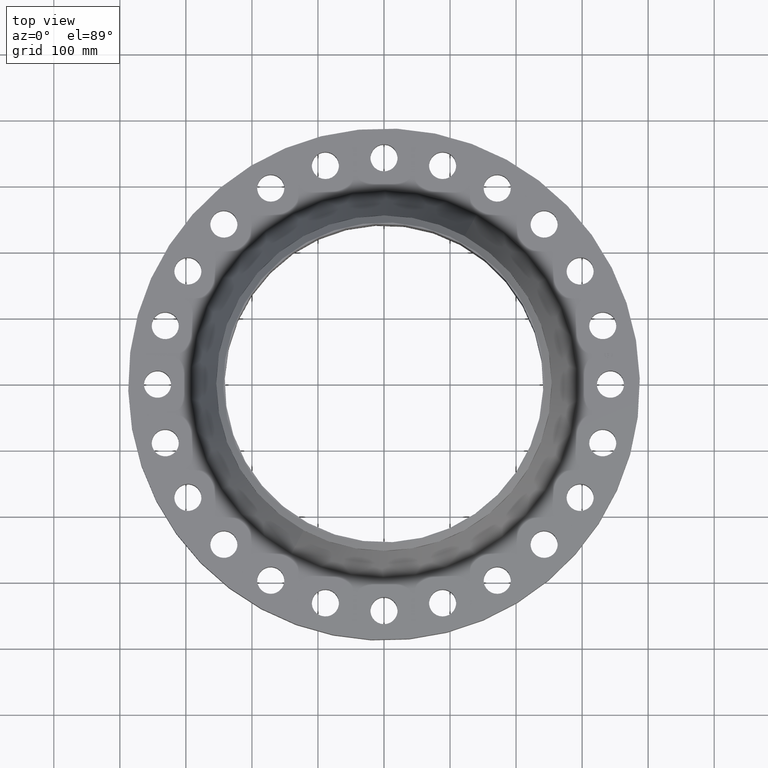
[diagram: clean part render]
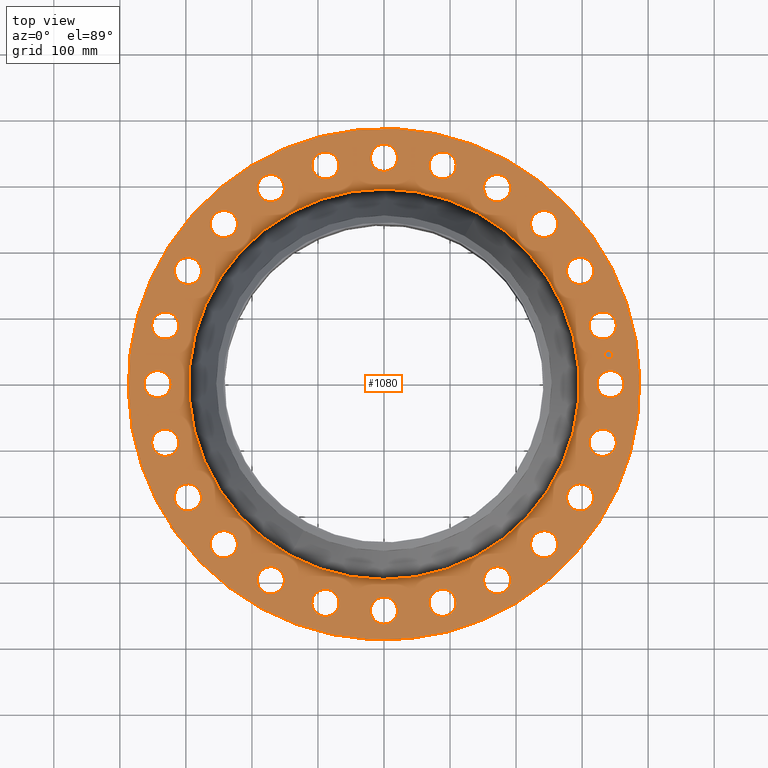
[diagram: same view with one face highlighted and labeled with its STEP entity id]
A machine part, top view. The second image highlights one B-rep face of the part: STEP entity #1080.
In plain terms, the highlighted planar face has unit normal (0, 0, -1).
Its self-contained STEP definition (entity closure, byte-faithful):
#119=AXIS2_PLACEMENT_3D('Circle Axis2P3D',#117,#118,$) ;
#606=AXIS2_PLACEMENT_3D('Plane Axis2P3D',#603,#604,#605) ;
#610=AXIS2_PLACEMENT_3D('Circle Axis2P3D',#608,#609,$) ;
#619=AXIS2_PLACEMENT_3D('Circle Axis2P3D',#617,#618,$) ;
#632=AXIS2_PLACEMENT_3D('Circle Axis2P3D',#630,#631,$) ;
#641=AXIS2_PLACEMENT_3D('Circle Axis2P3D',#639,#640,$) ;
#650=AXIS2_PLACEMENT_3D('Circle Axis2P3D',#648,#649,$) ;
#659=AXIS2_PLACEMENT_3D('Circle Axis2P3D',#657,#658,$) ;
#668=AXIS2_PLACEMENT_3D('Circle Axis2P3D',#666,#667,$) ;
#677=AXIS2_PLACEMENT_3D('Circle Axis2P3D',#675,#676,$) ;
#686=AXIS2_PLACEMENT_3D('Circle Axis2P3D',#684,#685,$) ;
#695=AXIS2_PLACEMENT_3D('Circle Axis2P3D',#693,#694,$) ;
#704=AXIS2_PLACEMENT_3D('Circle Axis2P3D',#702,#703,$) ;
#713=AXIS2_PLACEMENT_3D('Circle Axis2P3D',#711,#712,$) ;
#722=AXIS2_PLACEMENT_3D('Circle Axis2P3D',#720,#721,$) ;
#731=AXIS2_PLACEMENT_3D('Circle Axis2P3D',#729,#730,$) ;
#740=AXIS2_PLACEMENT_3D('Circle Axis2P3D',#738,#739,$) ;
#749=AXIS2_PLACEMENT_3D('Circle Axis2P3D',#747,#748,$) ;
#758=AXIS2_PLACEMENT_3D('Circle Axis2P3D',#756,#757,$) ;
#767=AXIS2_PLACEMENT_3D('Circle Axis2P3D',#765,#766,$) ;
#776=AXIS2_PLACEMENT_3D('Circle Axis2P3D',#774,#775,$) ;
#785=AXIS2_PLACEMENT_3D('Circle Axis2P3D',#783,#784,$) ;
#794=AXIS2_PLACEMENT_3D('Circle Axis2P3D',#792,#793,$) ;
#803=AXIS2_PLACEMENT_3D('Circle Axis2P3D',#801,#802,$) ;
#812=AXIS2_PLACEMENT_3D('Circle Axis2P3D',#810,#811,$) ;
#821=AXIS2_PLACEMENT_3D('Circle Axis2P3D',#819,#820,$) ;
#830=AXIS2_PLACEMENT_3D('Circle Axis2P3D',#828,#829,$) ;
#839=AXIS2_PLACEMENT_3D('Circle Axis2P3D',#837,#838,$) ;
#848=AXIS2_PLACEMENT_3D('Circle Axis2P3D',#846,#847,$) ;
#857=AXIS2_PLACEMENT_3D('Circle Axis2P3D',#855,#856,$) ;
#866=AXIS2_PLACEMENT_3D('Circle Axis2P3D',#864,#865,$) ;
#875=AXIS2_PLACEMENT_3D('Circle Axis2P3D',#873,#874,$) ;
#884=AXIS2_PLACEMENT_3D('Circle Axis2P3D',#882,#883,$) ;
#893=AXIS2_PLACEMENT_3D('Circle Axis2P3D',#891,#892,$) ;
#902=AXIS2_PLACEMENT_3D('Circle Axis2P3D',#900,#901,$) ;
#911=AXIS2_PLACEMENT_3D('Circle Axis2P3D',#909,#910,$) ;
#920=AXIS2_PLACEMENT_3D('Circle Axis2P3D',#918,#919,$) ;
#929=AXIS2_PLACEMENT_3D('Circle Axis2P3D',#927,#928,$) ;
#938=AXIS2_PLACEMENT_3D('Circle Axis2P3D',#936,#937,$) ;
#947=AXIS2_PLACEMENT_3D('Circle Axis2P3D',#945,#946,$) ;
#956=AXIS2_PLACEMENT_3D('Circle Axis2P3D',#954,#955,$) ;
#965=AXIS2_PLACEMENT_3D('Circle Axis2P3D',#963,#964,$) ;
#974=AXIS2_PLACEMENT_3D('Circle Axis2P3D',#972,#973,$) ;
#983=AXIS2_PLACEMENT_3D('Circle Axis2P3D',#981,#982,$) ;
#992=AXIS2_PLACEMENT_3D('Circle Axis2P3D',#990,#991,$) ;
#1001=AXIS2_PLACEMENT_3D('Circle Axis2P3D',#999,#1000,$) ;
#1010=AXIS2_PLACEMENT_3D('Circle Axis2P3D',#1008,#1009,$) ;
#1019=AXIS2_PLACEMENT_3D('Circle Axis2P3D',#1017,#1018,$) ;
#1028=AXIS2_PLACEMENT_3D('Circle Axis2P3D',#1026,#1027,$) ;
#1037=AXIS2_PLACEMENT_3D('Circle Axis2P3D',#1035,#1036,$) ;
#1046=AXIS2_PLACEMENT_3D('Circle Axis2P3D',#1044,#1045,$) ;
#1055=AXIS2_PLACEMENT_3D('Circle Axis2P3D',#1053,#1054,$) ;
#1064=AXIS2_PLACEMENT_3D('Circle Axis2P3D',#1062,#1063,$) ;
#1073=AXIS2_PLACEMENT_3D('Circle Axis2P3D',#1071,#1072,$) ;
#46=CARTESIAN_POINT('Vertex',(12.789158125,0.388334686271,2.75)) ;
#72=CARTESIAN_POINT('Vertex',(14.2108418752,-0.388334686277,2.75000000001)) ;
#76=CARTESIAN_POINT('Control Point',(12.789158125,0.388334686271,2.75000000001)) ;
#77=CARTESIAN_POINT('Control Point',(12.8501575948,0.49999346691,2.75000000001)) ;
#78=CARTESIAN_POINT('Control Point',(12.933081215,0.599675029647,2.75000000001)) ;
#79=CARTESIAN_POINT('Control Point',(13.0348108837,0.681620228595,2.75000000001)) ;
#80=CARTESIAN_POINT('Control Point',(13.2649194365,0.801207087645,2.75000000001)) ;
#81=CARTESIAN_POINT('Control Point',(13.5231621628,0.824906397278,2.75000000001)) ;
#82=CARTESIAN_POINT('Control Point',(13.6530399072,0.810916664576,2.75000000001)) ;
#83=CARTESIAN_POINT('Control Point',(13.9003119043,0.732766025444,2.75)) ;
#84=CARTESIAN_POINT('Control Point',(14.0996750297,0.566918785071,2.75)) ;
#85=CARTESIAN_POINT('Control Point',(14.1816202287,0.465189116403,2.75)) ;
#86=CARTESIAN_POINT('Control Point',(14.3012070877,0.235080563584,2.75)) ;
#87=CARTESIAN_POINT('Control Point',(14.3249063974,-0.0231621626661,2.75)) ;
#88=CARTESIAN_POINT('Control Point',(14.3109166647,-0.15303990709,2.75)) ;
#89=CARTESIAN_POINT('Control Point',(14.2718413451,-0.276675905632,2.75)) ;
#90=CARTESIAN_POINT('Control Point',(14.2108418752,-0.388334686271,2.75)) ;
#117=CARTESIAN_POINT('Axis2P3D Location',(13.5000000001,0.,2.75)) ;
#603=CARTESIAN_POINT('Axis2P3D Location',(0.,15.2500000001,2.75000000001)) ;
#608=CARTESIAN_POINT('Axis2P3D Location',(-1.28099106126E-011,1.16685663756E-011,2.75000000001)) ;
#612=CARTESIAN_POINT('Vertex',(7.31123946375,13.3831340689,2.75000000003)) ;
#614=CARTESIAN_POINT('Vertex',(-7.31123946377,-13.3831340689,2.75000000003)) ;
#617=CARTESIAN_POINT('Axis2P3D Location',(1.28099106126E-011,-2.33192293122E-012,2.75000000001)) ;
#630=CARTESIAN_POINT('Axis2P3D Location',(1.28121485424E-011,-2.32968500134E-012,2.75000000001)) ;
#634=CARTESIAN_POINT('Vertex',(-5.57864780282,-10.2116463068,2.75000000001)) ;
#636=CARTESIAN_POINT('Vertex',(5.57864780282,10.2116463068,2.75000000001)) ;
#639=CARTESIAN_POINT('Axis2P3D Location',(-1.28121485424E-011,1.16663284457E-011,2.75000000001)) ;
#648=CARTESIAN_POINT('Axis2P3D Location',(13.039998655,-3.49405710889,2.75000000001)) ;
#652=CARTESIAN_POINT('Vertex',(13.6261107679,-4.05313902699,2.75000000001)) ;
#654=CARTESIAN_POINT('Vertex',(12.4538865421,-2.93497519085,2.75)) ;
#657=CARTESIAN_POINT('Axis2P3D Location',(13.039998655,-3.49405710893,2.75000000001)) ;
#666=CARTESIAN_POINT('Axis2P3D Location',(11.6913429511,-6.75,2.75000000001)) ;
#670=CARTESIAN_POINT('Vertex',(12.1127827299,-7.44172864108,2.75)) ;
#672=CARTESIAN_POINT('Vertex',(11.2699031723,-6.05827135898,2.75)) ;
#675=CARTESIAN_POINT('Axis2P3D Location',(11.6913429511,-6.75,2.75000000001)) ;
#684=CARTESIAN_POINT('Axis2P3D Location',(9.54594154605,-9.54594154608,2.75000000001)) ;
#688=CARTESIAN_POINT('Vertex',(9.77398856631,-10.3231767463,2.75000000001)) ;
#690=CARTESIAN_POINT('Vertex',(9.31789452583,-8.76870634577,2.75)) ;
#693=CARTESIAN_POINT('Axis2P3D Location',(9.54594154612,-9.54594154606,2.75000000001)) ;
#702=CARTESIAN_POINT('Axis2P3D Location',(6.75000000004,-11.6913429511,2.75000000001)) ;
#706=CARTESIAN_POINT('Vertex',(6.76911323412,-12.5011174162,2.75000000001)) ;
#708=CARTESIAN_POINT('Vertex',(6.73088676594,-10.881568486,2.75)) ;
#711=CARTESIAN_POINT('Axis2P3D Location',(6.75000000004,-11.6913429511,2.75000000001)) ;
#720=CARTESIAN_POINT('Axis2P3D Location',(3.49405710889,-13.039998655,2.75000000001)) ;
#724=CARTESIAN_POINT('Vertex',(3.30293402149,-13.8271275933,2.75000000001)) ;
#726=CARTESIAN_POINT('Vertex',(3.68518019627,-12.2528697167,2.75)) ;
#729=CARTESIAN_POINT('Axis2P3D Location',(3.4940571089,-13.039998655,2.75000000001)) ;
#738=CARTESIAN_POINT('Axis2P3D Location',(1.98107846838E-011,-13.5000000001,2.75000000001)) ;
#742=CARTESIAN_POINT('Vertex',(-0.388334686318,-14.2108418752,2.75000000001)) ;
#744=CARTESIAN_POINT('Vertex',(0.388334686271,-12.789158125,2.75)) ;
#747=CARTESIAN_POINT('Axis2P3D Location',(-3.66662430951E-011,-13.5000000001,2.75000000001)) ;
#756=CARTESIAN_POINT('Axis2P3D Location',(-3.4940571089,-13.039998655,2.75000000001)) ;
#760=CARTESIAN_POINT('Vertex',(-4.05313902696,-13.6261107679,2.75000000001)) ;
#762=CARTESIAN_POINT('Vertex',(-2.93497519085,-12.4538865421,2.75)) ;
#765=CARTESIAN_POINT('Axis2P3D Location',(-3.4940571089,-13.039998655,2.75000000001)) ;
#774=CARTESIAN_POINT('Axis2P3D Location',(-6.75000000004,-11.6913429511,2.75000000001)) ;
#778=CARTESIAN_POINT('Vertex',(-7.44172864108,-12.1127827299,2.75)) ;
#780=CARTESIAN_POINT('Vertex',(-6.05827135898,-11.2699031723,2.75)) ;
#783=CARTESIAN_POINT('Axis2P3D Location',(-6.75000000004,-11.6913429511,2.75000000001)) ;
#792=CARTESIAN_POINT('Axis2P3D Location',(-9.54594154606,-9.5459415461,2.75000000001)) ;
#796=CARTESIAN_POINT('Vertex',(-10.3231767464,-9.77398856627,2.75000000001)) ;
#798=CARTESIAN_POINT('Vertex',(-8.76870634577,-9.31789452583,2.75)) ;
#801=CARTESIAN_POINT('Axis2P3D Location',(-9.54594154608,-9.54594154603,2.75000000001)) ;
#810=CARTESIAN_POINT('Axis2P3D Location',(-11.6913429511,-6.75000000004,2.75000000001)) ;
#814=CARTESIAN_POINT('Vertex',(-12.5011174162,-6.76911323408,2.75000000001)) ;
#816=CARTESIAN_POINT('Vertex',(-10.881568486,-6.73088676594,2.75)) ;
#819=CARTESIAN_POINT('Axis2P3D Location',(-11.6913429511,-6.75000000004,2.75000000001)) ;
#828=CARTESIAN_POINT('Axis2P3D Location',(-13.039998655,-3.49405710889,2.75000000001)) ;
#832=CARTESIAN_POINT('Vertex',(-13.8271275933,-3.30293402152,2.75000000001)) ;
#834=CARTESIAN_POINT('Vertex',(-12.2528697167,-3.68518019627,2.75)) ;
#837=CARTESIAN_POINT('Axis2P3D Location',(-13.039998655,-3.49405710889,2.75000000001)) ;
#846=CARTESIAN_POINT('Axis2P3D Location',(-13.5000000001,1.74804702646E-011,2.75000000001)) ;
#850=CARTESIAN_POINT('Vertex',(-14.2108418752,0.388334686286,2.75000000001)) ;
#852=CARTESIAN_POINT('Vertex',(-12.789158125,-0.388334686271,2.75)) ;
#855=CARTESIAN_POINT('Axis2P3D Location',(-13.5000000001,-8.14382682026E-012,2.75000000001)) ;
#864=CARTESIAN_POINT('Axis2P3D Location',(-13.039998655,3.4940571089,2.75000000001)) ;
#868=CARTESIAN_POINT('Vertex',(-13.6261107679,4.05313902693,2.75000000001)) ;
#870=CARTESIAN_POINT('Vertex',(-12.4538865421,2.93497519085,2.75)) ;
#873=CARTESIAN_POINT('Axis2P3D Location',(-13.039998655,3.4940571089,2.75000000001)) ;
#882=CARTESIAN_POINT('Axis2P3D Location',(-11.6913429511,6.75000000001,2.75000000001)) ;
#886=CARTESIAN_POINT('Vertex',(-12.1127827299,7.44172864108,2.75)) ;
#888=CARTESIAN_POINT('Vertex',(-11.2699031723,6.05827135898,2.75)) ;
#891=CARTESIAN_POINT('Axis2P3D Location',(-11.6913429511,6.75000000001,2.75000000001)) ;
#900=CARTESIAN_POINT('Axis2P3D Location',(-9.54594154608,9.54594154604,2.75000000001)) ;
#904=CARTESIAN_POINT('Vertex',(-9.77398856631,10.3231767463,2.75000000001)) ;
#906=CARTESIAN_POINT('Vertex',(-9.31789452583,8.76870634577,2.75)) ;
#909=CARTESIAN_POINT('Axis2P3D Location',(-9.54594154608,9.54594154604,2.75000000001)) ;
#918=CARTESIAN_POINT('Axis2P3D Location',(-6.75000000004,11.6913429511,2.75000000001)) ;
#922=CARTESIAN_POINT('Vertex',(-6.76911323412,12.5011174162,2.75000000001)) ;
#924=CARTESIAN_POINT('Vertex',(-6.73088676594,10.881568486,2.75)) ;
#927=CARTESIAN_POINT('Axis2P3D Location',(-6.75000000004,11.6913429511,2.75000000001)) ;
#936=CARTESIAN_POINT('Axis2P3D Location',(-3.49405710889,13.039998655,2.75000000001)) ;
#940=CARTESIAN_POINT('Vertex',(-3.30293402149,13.8271275933,2.75000000001)) ;
#942=CARTESIAN_POINT('Vertex',(-3.68518019627,12.2528697167,2.75)) ;
#945=CARTESIAN_POINT('Axis2P3D Location',(-3.49405710889,13.039998655,2.75000000001)) ;
#954=CARTESIAN_POINT('Axis2P3D Location',(-1.98107846838E-011,13.5000000001,2.75000000001)) ;
#958=CARTESIAN_POINT('Vertex',(0.388334686318,14.2108418753,2.75000000001)) ;
#960=CARTESIAN_POINT('Vertex',(-0.388334686271,12.789158125,2.75)) ;
#963=CARTESIAN_POINT('Axis2P3D Location',(3.66662430951E-011,13.5000000001,2.75000000001)) ;
#972=CARTESIAN_POINT('Axis2P3D Location',(3.4940571089,13.039998655,2.75000000001)) ;
#976=CARTESIAN_POINT('Vertex',(4.05313902696,13.6261107679,2.75000000001)) ;
#978=CARTESIAN_POINT('Vertex',(2.93497519085,12.4538865421,2.75)) ;
#981=CARTESIAN_POINT('Axis2P3D Location',(3.4940571089,13.039998655,2.75000000001)) ;
#990=CARTESIAN_POINT('Axis2P3D Location',(6.75000000004,11.6913429511,2.75000000001)) ;
#994=CARTESIAN_POINT('Vertex',(7.44172864108,12.1127827299,2.75)) ;
#996=CARTESIAN_POINT('Vertex',(6.05827135898,11.2699031723,2.75)) ;
#999=CARTESIAN_POINT('Axis2P3D Location',(6.75000000004,11.6913429511,2.75000000001)) ;
#1008=CARTESIAN_POINT('Axis2P3D Location',(9.54594154608,9.54594154604,2.75000000001)) ;
#1012=CARTESIAN_POINT('Vertex',(10.3231767464,9.77398856628,2.75000000001)) ;
#1014=CARTESIAN_POINT('Vertex',(8.76870634577,9.31789452583,2.75)) ;
#1017=CARTESIAN_POINT('Axis2P3D Location',(9.54594154608,9.54594154604,2.75000000001)) ;
#1026=CARTESIAN_POINT('Axis2P3D Location',(11.6913429511,6.75000000005,2.75000000001)) ;
#1030=CARTESIAN_POINT('Vertex',(12.5011174162,6.76911323409,2.75000000001)) ;
#1032=CARTESIAN_POINT('Vertex',(10.881568486,6.73088676594,2.75)) ;
#1035=CARTESIAN_POINT('Axis2P3D Location',(11.6913429511,6.75000000005,2.75000000001)) ;
#1044=CARTESIAN_POINT('Axis2P3D Location',(13.039998655,3.4940571089,2.75000000001)) ;
#1048=CARTESIAN_POINT('Vertex',(13.8271275933,3.30293402153,2.75000000001)) ;
#1050=CARTESIAN_POINT('Vertex',(12.2528697167,3.68518019627,2.75)) ;
#1053=CARTESIAN_POINT('Axis2P3D Location',(13.039998655,3.4940571089,2.75000000001)) ;
#1062=CARTESIAN_POINT('Axis2P3D Location',(13.3845056286,1.76210359498,2.75000000001)) ;
#1066=CARTESIAN_POINT('Vertex',(13.352200396,2.00748619818,2.75000000001)) ;
#1068=CARTESIAN_POINT('Vertex',(13.4168108612,1.51672099178,2.75000000001)) ;
#1071=CARTESIAN_POINT('Axis2P3D Location',(13.3845056286,1.76210359498,2.75000000001)) ;
#118=DIRECTION('Axis2P3D Direction',(0.,-0.,-0.0393700787402)) ;
#604=DIRECTION('Axis2P3D Direction',(0.,0.,-0.0393700787402)) ;
#605=DIRECTION('Axis2P3D XDirection',(0.0393700787402,0.,0.)) ;
#609=DIRECTION('Axis2P3D Direction',(0.,0.,-0.0393700787402)) ;
#618=DIRECTION('Axis2P3D Direction',(0.,0.,-0.0393700787402)) ;
#631=DIRECTION('Axis2P3D Direction',(0.,0.,-0.0393700787402)) ;
#640=DIRECTION('Axis2P3D Direction',(0.,0.,-0.0393700787402)) ;
#649=DIRECTION('Axis2P3D Direction',(0.,0.,-0.0393700787402)) ;
#658=DIRECTION('Axis2P3D Direction',(0.,0.,-0.0393700787402)) ;
#667=DIRECTION('Axis2P3D Direction',(0.,0.,-0.0393700787402)) ;
#676=DIRECTION('Axis2P3D Direction',(0.,0.,-0.0393700787402)) ;
#685=DIRECTION('Axis2P3D Direction',(0.,0.,-0.0393700787402)) ;
#694=DIRECTION('Axis2P3D Direction',(0.,0.,-0.0393700787402)) ;
#703=DIRECTION('Axis2P3D Direction',(0.,0.,-0.0393700787402)) ;
#712=DIRECTION('Axis2P3D Direction',(0.,0.,-0.0393700787402)) ;
#721=DIRECTION('Axis2P3D Direction',(0.,0.,-0.0393700787402)) ;
#730=DIRECTION('Axis2P3D Direction',(0.,0.,-0.0393700787402)) ;
#739=DIRECTION('Axis2P3D Direction',(0.,0.,-0.0393700787402)) ;
#748=DIRECTION('Axis2P3D Direction',(0.,0.,-0.0393700787402)) ;
#757=DIRECTION('Axis2P3D Direction',(0.,0.,-0.0393700787402)) ;
#766=DIRECTION('Axis2P3D Direction',(0.,0.,-0.0393700787402)) ;
#775=DIRECTION('Axis2P3D Direction',(0.,0.,-0.0393700787402)) ;
#784=DIRECTION('Axis2P3D Direction',(0.,0.,-0.0393700787402)) ;
#793=DIRECTION('Axis2P3D Direction',(0.,0.,-0.0393700787402)) ;
#802=DIRECTION('Axis2P3D Direction',(0.,0.,-0.0393700787402)) ;
#811=DIRECTION('Axis2P3D Direction',(0.,0.,-0.0393700787402)) ;
#820=DIRECTION('Axis2P3D Direction',(0.,0.,-0.0393700787402)) ;
#829=DIRECTION('Axis2P3D Direction',(0.,0.,-0.0393700787402)) ;
#838=DIRECTION('Axis2P3D Direction',(0.,0.,-0.0393700787402)) ;
#847=DIRECTION('Axis2P3D Direction',(0.,0.,-0.0393700787402)) ;
#856=DIRECTION('Axis2P3D Direction',(0.,0.,-0.0393700787402)) ;
#865=DIRECTION('Axis2P3D Direction',(0.,0.,-0.0393700787402)) ;
#874=DIRECTION('Axis2P3D Direction',(0.,0.,-0.0393700787402)) ;
#883=DIRECTION('Axis2P3D Direction',(0.,0.,-0.0393700787402)) ;
#892=DIRECTION('Axis2P3D Direction',(0.,0.,-0.0393700787402)) ;
#901=DIRECTION('Axis2P3D Direction',(0.,0.,-0.0393700787402)) ;
#910=DIRECTION('Axis2P3D Direction',(0.,0.,-0.0393700787402)) ;
#919=DIRECTION('Axis2P3D Direction',(0.,0.,-0.0393700787402)) ;
#928=DIRECTION('Axis2P3D Direction',(0.,0.,-0.0393700787402)) ;
#937=DIRECTION('Axis2P3D Direction',(0.,0.,-0.0393700787402)) ;
#946=DIRECTION('Axis2P3D Direction',(0.,0.,-0.0393700787402)) ;
#955=DIRECTION('Axis2P3D Direction',(0.,0.,-0.0393700787402)) ;
#964=DIRECTION('Axis2P3D Direction',(0.,0.,-0.0393700787402)) ;
#973=DIRECTION('Axis2P3D Direction',(0.,0.,-0.0393700787402)) ;
#982=DIRECTION('Axis2P3D Direction',(0.,0.,-0.0393700787402)) ;
#991=DIRECTION('Axis2P3D Direction',(0.,0.,-0.0393700787402)) ;
#1000=DIRECTION('Axis2P3D Direction',(0.,0.,-0.0393700787402)) ;
#1009=DIRECTION('Axis2P3D Direction',(0.,0.,-0.0393700787402)) ;
#1018=DIRECTION('Axis2P3D Direction',(0.,0.,-0.0393700787402)) ;
#1027=DIRECTION('Axis2P3D Direction',(0.,0.,-0.0393700787402)) ;
#1036=DIRECTION('Axis2P3D Direction',(0.,0.,-0.0393700787402)) ;
#1045=DIRECTION('Axis2P3D Direction',(0.,0.,-0.0393700787402)) ;
#1054=DIRECTION('Axis2P3D Direction',(0.,0.,-0.0393700787402)) ;
#1063=DIRECTION('Axis2P3D Direction',(0.,0.,-0.0393700787402)) ;
#1072=DIRECTION('Axis2P3D Direction',(0.,0.,-0.0393700787402)) ;
#623=ORIENTED_EDGE('',*,*,#616,.F.) ;
#624=ORIENTED_EDGE('',*,*,#621,.F.) ;
#627=ORIENTED_EDGE('',*,*,#91,.T.) ;
#628=ORIENTED_EDGE('',*,*,#121,.T.) ;
#645=ORIENTED_EDGE('',*,*,#638,.T.) ;
#646=ORIENTED_EDGE('',*,*,#643,.T.) ;
#663=ORIENTED_EDGE('',*,*,#656,.T.) ;
#664=ORIENTED_EDGE('',*,*,#661,.T.) ;
#681=ORIENTED_EDGE('',*,*,#674,.T.) ;
#682=ORIENTED_EDGE('',*,*,#679,.T.) ;
#699=ORIENTED_EDGE('',*,*,#692,.T.) ;
#700=ORIENTED_EDGE('',*,*,#697,.T.) ;
#717=ORIENTED_EDGE('',*,*,#710,.T.) ;
#718=ORIENTED_EDGE('',*,*,#715,.T.) ;
#735=ORIENTED_EDGE('',*,*,#728,.T.) ;
#736=ORIENTED_EDGE('',*,*,#733,.T.) ;
#753=ORIENTED_EDGE('',*,*,#746,.T.) ;
#754=ORIENTED_EDGE('',*,*,#751,.T.) ;
#771=ORIENTED_EDGE('',*,*,#764,.T.) ;
#772=ORIENTED_EDGE('',*,*,#769,.T.) ;
#789=ORIENTED_EDGE('',*,*,#782,.T.) ;
#790=ORIENTED_EDGE('',*,*,#787,.T.) ;
#807=ORIENTED_EDGE('',*,*,#800,.T.) ;
#808=ORIENTED_EDGE('',*,*,#805,.T.) ;
#825=ORIENTED_EDGE('',*,*,#818,.T.) ;
#826=ORIENTED_EDGE('',*,*,#823,.T.) ;
#843=ORIENTED_EDGE('',*,*,#836,.T.) ;
#844=ORIENTED_EDGE('',*,*,#841,.T.) ;
#861=ORIENTED_EDGE('',*,*,#854,.T.) ;
#862=ORIENTED_EDGE('',*,*,#859,.T.) ;
#879=ORIENTED_EDGE('',*,*,#872,.T.) ;
#880=ORIENTED_EDGE('',*,*,#877,.T.) ;
#897=ORIENTED_EDGE('',*,*,#890,.T.) ;
#898=ORIENTED_EDGE('',*,*,#895,.T.) ;
#915=ORIENTED_EDGE('',*,*,#908,.T.) ;
#916=ORIENTED_EDGE('',*,*,#913,.T.) ;
#933=ORIENTED_EDGE('',*,*,#926,.T.) ;
#934=ORIENTED_EDGE('',*,*,#931,.T.) ;
#951=ORIENTED_EDGE('',*,*,#944,.T.) ;
#952=ORIENTED_EDGE('',*,*,#949,.T.) ;
#969=ORIENTED_EDGE('',*,*,#962,.T.) ;
#970=ORIENTED_EDGE('',*,*,#967,.T.) ;
#987=ORIENTED_EDGE('',*,*,#980,.T.) ;
#988=ORIENTED_EDGE('',*,*,#985,.T.) ;
#1005=ORIENTED_EDGE('',*,*,#998,.T.) ;
#1006=ORIENTED_EDGE('',*,*,#1003,.T.) ;
#1023=ORIENTED_EDGE('',*,*,#1016,.T.) ;
#1024=ORIENTED_EDGE('',*,*,#1021,.T.) ;
#1041=ORIENTED_EDGE('',*,*,#1034,.T.) ;
#1042=ORIENTED_EDGE('',*,*,#1039,.T.) ;
#1059=ORIENTED_EDGE('',*,*,#1052,.T.) ;
#1060=ORIENTED_EDGE('',*,*,#1057,.T.) ;
#1077=ORIENTED_EDGE('',*,*,#1070,.T.) ;
#1078=ORIENTED_EDGE('',*,*,#1075,.T.) ;
#629=FACE_BOUND('',#626,.T.) ;
#647=FACE_BOUND('',#644,.T.) ;
#665=FACE_BOUND('',#662,.T.) ;
#683=FACE_BOUND('',#680,.T.) ;
#701=FACE_BOUND('',#698,.T.) ;
#719=FACE_BOUND('',#716,.T.) ;
#737=FACE_BOUND('',#734,.T.) ;
#755=FACE_BOUND('',#752,.T.) ;
#773=FACE_BOUND('',#770,.T.) ;
#791=FACE_BOUND('',#788,.T.) ;
#809=FACE_BOUND('',#806,.T.) ;
#827=FACE_BOUND('',#824,.T.) ;
#845=FACE_BOUND('',#842,.T.) ;
#863=FACE_BOUND('',#860,.T.) ;
#881=FACE_BOUND('',#878,.T.) ;
#899=FACE_BOUND('',#896,.T.) ;
#917=FACE_BOUND('',#914,.T.) ;
#935=FACE_BOUND('',#932,.T.) ;
#953=FACE_BOUND('',#950,.T.) ;
#971=FACE_BOUND('',#968,.T.) ;
#989=FACE_BOUND('',#986,.T.) ;
#1007=FACE_BOUND('',#1004,.T.) ;
#1025=FACE_BOUND('',#1022,.T.) ;
#1043=FACE_BOUND('',#1040,.T.) ;
#1061=FACE_BOUND('',#1058,.T.) ;
#1079=FACE_BOUND('',#1076,.T.) ;
#1080=ADVANCED_FACE('PartBody',(#625,#629,#647,#665,#683,#701,#719,#737,#755,#773,#791,#809,#827,#845,#863,#881,#899,#917,#935,#953,#971,#989,#1007,#1025,#1043,#1061,#1079),#607,.F.) ;
#75=B_SPLINE_CURVE_WITH_KNOTS('',5,(#76,#77,#78,#79,#80,#81,#82,#83,#84,#85,#86,#87,#88,#89,#90),.UNSPECIFIED.,.F.,.U.,(6,3,3,3,6),(-32.3175636276,-16.1587818138,3.5527136788E-015,16.1587818138,32.3175636276),.UNSPECIFIED.) ;
#120=CIRCLE('generated circle',#119,0.810000000003) ;
#611=CIRCLE('generated circle',#610,15.2500000001) ;
#620=CIRCLE('generated circle',#619,15.2500000001) ;
#633=CIRCLE('generated circle',#632,11.6361089546) ;
#642=CIRCLE('generated circle',#641,11.6361089546) ;
#651=CIRCLE('generated circle',#650,0.810000000021) ;
#660=CIRCLE('generated circle',#659,0.810000000021) ;
#669=CIRCLE('generated circle',#668,0.810000000012) ;
#678=CIRCLE('generated circle',#677,0.810000000012) ;
#687=CIRCLE('generated circle',#686,0.809999999985) ;
#696=CIRCLE('generated circle',#695,0.809999999985) ;
#705=CIRCLE('generated circle',#704,0.810000000024) ;
#714=CIRCLE('generated circle',#713,0.810000000024) ;
#723=CIRCLE('generated circle',#722,0.810000000018) ;
#732=CIRCLE('generated circle',#731,0.810000000018) ;
#741=CIRCLE('generated circle',#740,0.810000000034) ;
#750=CIRCLE('generated circle',#749,0.810000000034) ;
#759=CIRCLE('generated circle',#758,0.809999999995) ;
#768=CIRCLE('generated circle',#767,0.809999999995) ;
#777=CIRCLE('generated circle',#776,0.809999999993) ;
#786=CIRCLE('generated circle',#785,0.809999999993) ;
#795=CIRCLE('generated circle',#794,0.81000000002) ;
#804=CIRCLE('generated circle',#803,0.81000000002) ;
#813=CIRCLE('generated circle',#812,0.809999999987) ;
#822=CIRCLE('generated circle',#821,0.809999999987) ;
#831=CIRCLE('generated circle',#830,0.809999999982) ;
#840=CIRCLE('generated circle',#839,0.809999999982) ;
#849=CIRCLE('generated circle',#848,0.810000000002) ;
#858=CIRCLE('generated circle',#857,0.810000000002) ;
#867=CIRCLE('generated circle',#866,0.809999999995) ;
#876=CIRCLE('generated circle',#875,0.809999999995) ;
#885=CIRCLE('generated circle',#884,0.810000000012) ;
#894=CIRCLE('generated circle',#893,0.810000000012) ;
#903=CIRCLE('generated circle',#902,0.81000000002) ;
#912=CIRCLE('generated circle',#911,0.81000000002) ;
#921=CIRCLE('generated circle',#920,0.810000000024) ;
#930=CIRCLE('generated circle',#929,0.810000000024) ;
#939=CIRCLE('generated circle',#938,0.810000000018) ;
#948=CIRCLE('generated circle',#947,0.810000000018) ;
#957=CIRCLE('generated circle',#956,0.810000000034) ;
#966=CIRCLE('generated circle',#965,0.810000000034) ;
#975=CIRCLE('generated circle',#974,0.809999999995) ;
#984=CIRCLE('generated circle',#983,0.809999999995) ;
#993=CIRCLE('generated circle',#992,0.809999999993) ;
#1002=CIRCLE('generated circle',#1001,0.809999999993) ;
#1011=CIRCLE('generated circle',#1010,0.81000000002) ;
#1020=CIRCLE('generated circle',#1019,0.81000000002) ;
#1029=CIRCLE('generated circle',#1028,0.809999999987) ;
#1038=CIRCLE('generated circle',#1037,0.809999999987) ;
#1047=CIRCLE('generated circle',#1046,0.809999999982) ;
#1056=CIRCLE('generated circle',#1055,0.809999999982) ;
#1065=CIRCLE('generated circle',#1064,0.247500000012) ;
#1074=CIRCLE('generated circle',#1073,0.247500000012) ;
#91=EDGE_CURVE('',#47,#73,#75,.T.) ;
#121=EDGE_CURVE('',#73,#47,#120,.T.) ;
#616=EDGE_CURVE('',#613,#615,#611,.T.) ;
#621=EDGE_CURVE('',#615,#613,#620,.T.) ;
#638=EDGE_CURVE('',#635,#637,#633,.T.) ;
#643=EDGE_CURVE('',#637,#635,#642,.T.) ;
#656=EDGE_CURVE('',#653,#655,#651,.T.) ;
#661=EDGE_CURVE('',#655,#653,#660,.T.) ;
#674=EDGE_CURVE('',#671,#673,#669,.T.) ;
#679=EDGE_CURVE('',#673,#671,#678,.T.) ;
#692=EDGE_CURVE('',#689,#691,#687,.T.) ;
#697=EDGE_CURVE('',#691,#689,#696,.T.) ;
#710=EDGE_CURVE('',#707,#709,#705,.T.) ;
#715=EDGE_CURVE('',#709,#707,#714,.T.) ;
#728=EDGE_CURVE('',#725,#727,#723,.T.) ;
#733=EDGE_CURVE('',#727,#725,#732,.T.) ;
#746=EDGE_CURVE('',#743,#745,#741,.T.) ;
#751=EDGE_CURVE('',#745,#743,#750,.T.) ;
#764=EDGE_CURVE('',#761,#763,#759,.T.) ;
#769=EDGE_CURVE('',#763,#761,#768,.T.) ;
#782=EDGE_CURVE('',#779,#781,#777,.T.) ;
#787=EDGE_CURVE('',#781,#779,#786,.T.) ;
#800=EDGE_CURVE('',#797,#799,#795,.T.) ;
#805=EDGE_CURVE('',#799,#797,#804,.T.) ;
#818=EDGE_CURVE('',#815,#817,#813,.T.) ;
#823=EDGE_CURVE('',#817,#815,#822,.T.) ;
#836=EDGE_CURVE('',#833,#835,#831,.T.) ;
#841=EDGE_CURVE('',#835,#833,#840,.T.) ;
#854=EDGE_CURVE('',#851,#853,#849,.T.) ;
#859=EDGE_CURVE('',#853,#851,#858,.T.) ;
#872=EDGE_CURVE('',#869,#871,#867,.T.) ;
#877=EDGE_CURVE('',#871,#869,#876,.T.) ;
#890=EDGE_CURVE('',#887,#889,#885,.T.) ;
#895=EDGE_CURVE('',#889,#887,#894,.T.) ;
#908=EDGE_CURVE('',#905,#907,#903,.T.) ;
#913=EDGE_CURVE('',#907,#905,#912,.T.) ;
#926=EDGE_CURVE('',#923,#925,#921,.T.) ;
#931=EDGE_CURVE('',#925,#923,#930,.T.) ;
#944=EDGE_CURVE('',#941,#943,#939,.T.) ;
#949=EDGE_CURVE('',#943,#941,#948,.T.) ;
#962=EDGE_CURVE('',#959,#961,#957,.T.) ;
#967=EDGE_CURVE('',#961,#959,#966,.T.) ;
#980=EDGE_CURVE('',#977,#979,#975,.T.) ;
#985=EDGE_CURVE('',#979,#977,#984,.T.) ;
#998=EDGE_CURVE('',#995,#997,#993,.T.) ;
#1003=EDGE_CURVE('',#997,#995,#1002,.T.) ;
#1016=EDGE_CURVE('',#1013,#1015,#1011,.T.) ;
#1021=EDGE_CURVE('',#1015,#1013,#1020,.T.) ;
#1034=EDGE_CURVE('',#1031,#1033,#1029,.T.) ;
#1039=EDGE_CURVE('',#1033,#1031,#1038,.T.) ;
#1052=EDGE_CURVE('',#1049,#1051,#1047,.T.) ;
#1057=EDGE_CURVE('',#1051,#1049,#1056,.T.) ;
#1070=EDGE_CURVE('',#1067,#1069,#1065,.T.) ;
#1075=EDGE_CURVE('',#1069,#1067,#1074,.T.) ;
#622=EDGE_LOOP('',(#623,#624)) ;
#626=EDGE_LOOP('',(#627,#628)) ;
#644=EDGE_LOOP('',(#645,#646)) ;
#662=EDGE_LOOP('',(#663,#664)) ;
#680=EDGE_LOOP('',(#681,#682)) ;
#698=EDGE_LOOP('',(#699,#700)) ;
#716=EDGE_LOOP('',(#717,#718)) ;
#734=EDGE_LOOP('',(#735,#736)) ;
#752=EDGE_LOOP('',(#753,#754)) ;
#770=EDGE_LOOP('',(#771,#772)) ;
#788=EDGE_LOOP('',(#789,#790)) ;
#806=EDGE_LOOP('',(#807,#808)) ;
#824=EDGE_LOOP('',(#825,#826)) ;
#842=EDGE_LOOP('',(#843,#844)) ;
#860=EDGE_LOOP('',(#861,#862)) ;
#878=EDGE_LOOP('',(#879,#880)) ;
#896=EDGE_LOOP('',(#897,#898)) ;
#914=EDGE_LOOP('',(#915,#916)) ;
#932=EDGE_LOOP('',(#933,#934)) ;
#950=EDGE_LOOP('',(#951,#952)) ;
#968=EDGE_LOOP('',(#969,#970)) ;
#986=EDGE_LOOP('',(#987,#988)) ;
#1004=EDGE_LOOP('',(#1005,#1006)) ;
#1022=EDGE_LOOP('',(#1023,#1024)) ;
#1040=EDGE_LOOP('',(#1041,#1042)) ;
#1058=EDGE_LOOP('',(#1059,#1060)) ;
#1076=EDGE_LOOP('',(#1077,#1078)) ;
#625=FACE_OUTER_BOUND('',#622,.T.) ;
#607=PLANE('',#606) ;
#47=VERTEX_POINT('',#46) ;
#73=VERTEX_POINT('',#72) ;
#613=VERTEX_POINT('',#612) ;
#615=VERTEX_POINT('',#614) ;
#635=VERTEX_POINT('',#634) ;
#637=VERTEX_POINT('',#636) ;
#653=VERTEX_POINT('',#652) ;
#655=VERTEX_POINT('',#654) ;
#671=VERTEX_POINT('',#670) ;
#673=VERTEX_POINT('',#672) ;
#689=VERTEX_POINT('',#688) ;
#691=VERTEX_POINT('',#690) ;
#707=VERTEX_POINT('',#706) ;
#709=VERTEX_POINT('',#708) ;
#725=VERTEX_POINT('',#724) ;
#727=VERTEX_POINT('',#726) ;
#743=VERTEX_POINT('',#742) ;
#745=VERTEX_POINT('',#744) ;
#761=VERTEX_POINT('',#760) ;
#763=VERTEX_POINT('',#762) ;
#779=VERTEX_POINT('',#778) ;
#781=VERTEX_POINT('',#780) ;
#797=VERTEX_POINT('',#796) ;
#799=VERTEX_POINT('',#798) ;
#815=VERTEX_POINT('',#814) ;
#817=VERTEX_POINT('',#816) ;
#833=VERTEX_POINT('',#832) ;
#835=VERTEX_POINT('',#834) ;
#851=VERTEX_POINT('',#850) ;
#853=VERTEX_POINT('',#852) ;
#869=VERTEX_POINT('',#868) ;
#871=VERTEX_POINT('',#870) ;
#887=VERTEX_POINT('',#886) ;
#889=VERTEX_POINT('',#888) ;
#905=VERTEX_POINT('',#904) ;
#907=VERTEX_POINT('',#906) ;
#923=VERTEX_POINT('',#922) ;
#925=VERTEX_POINT('',#924) ;
#941=VERTEX_POINT('',#940) ;
#943=VERTEX_POINT('',#942) ;
#959=VERTEX_POINT('',#958) ;
#961=VERTEX_POINT('',#960) ;
#977=VERTEX_POINT('',#976) ;
#979=VERTEX_POINT('',#978) ;
#995=VERTEX_POINT('',#994) ;
#997=VERTEX_POINT('',#996) ;
#1013=VERTEX_POINT('',#1012) ;
#1015=VERTEX_POINT('',#1014) ;
#1031=VERTEX_POINT('',#1030) ;
#1033=VERTEX_POINT('',#1032) ;
#1049=VERTEX_POINT('',#1048) ;
#1051=VERTEX_POINT('',#1050) ;
#1067=VERTEX_POINT('',#1066) ;
#1069=VERTEX_POINT('',#1068) ;